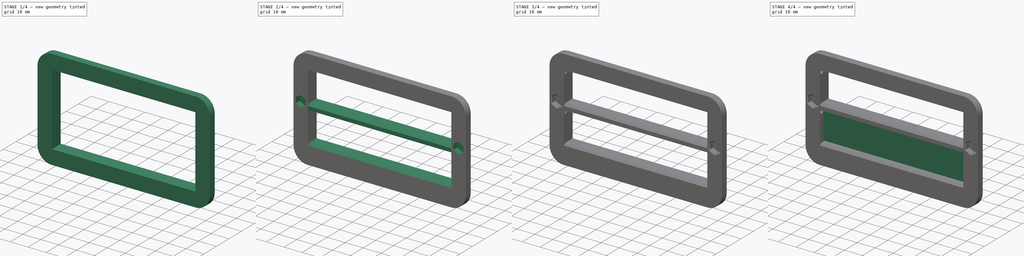
[diagram: build sequence overview — one tinted view per stage of 4, left to right]
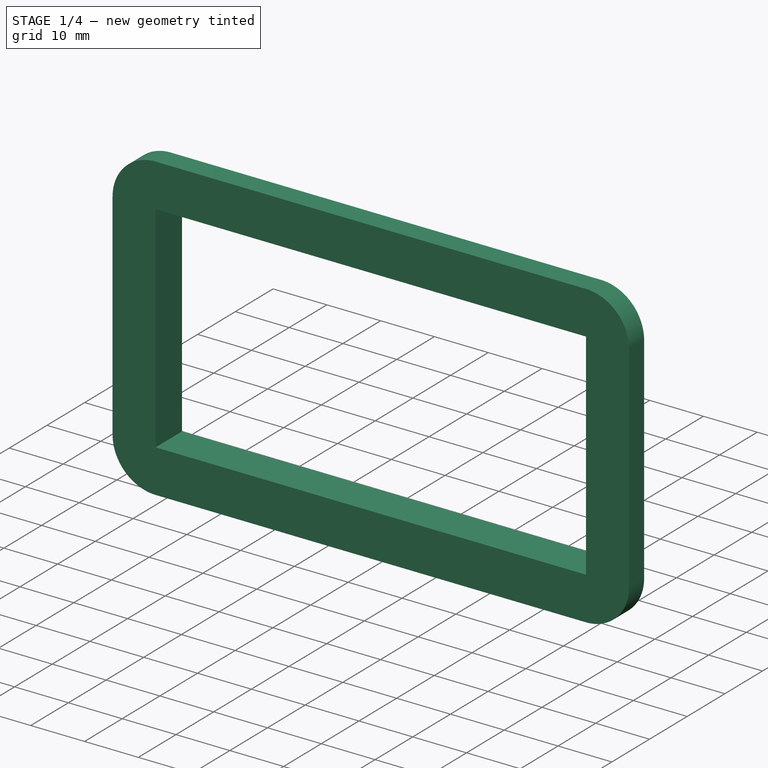
[diagram: stage 1 of 4 — iso view after this stage's code; geometry added in this stage tinted green]
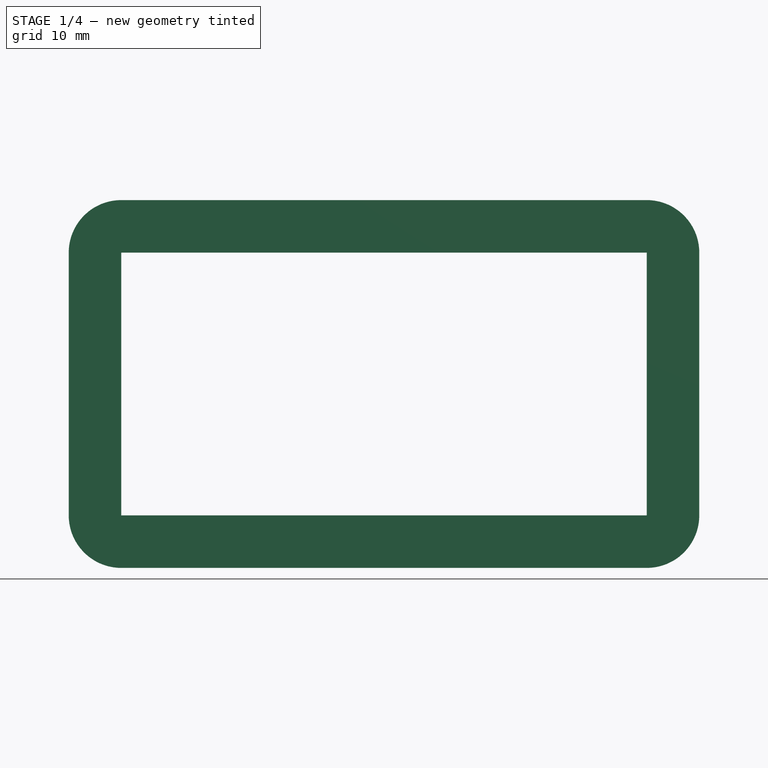
[diagram: stage 1 of 4 — front view after this stage's code; geometry added in this stage tinted green]
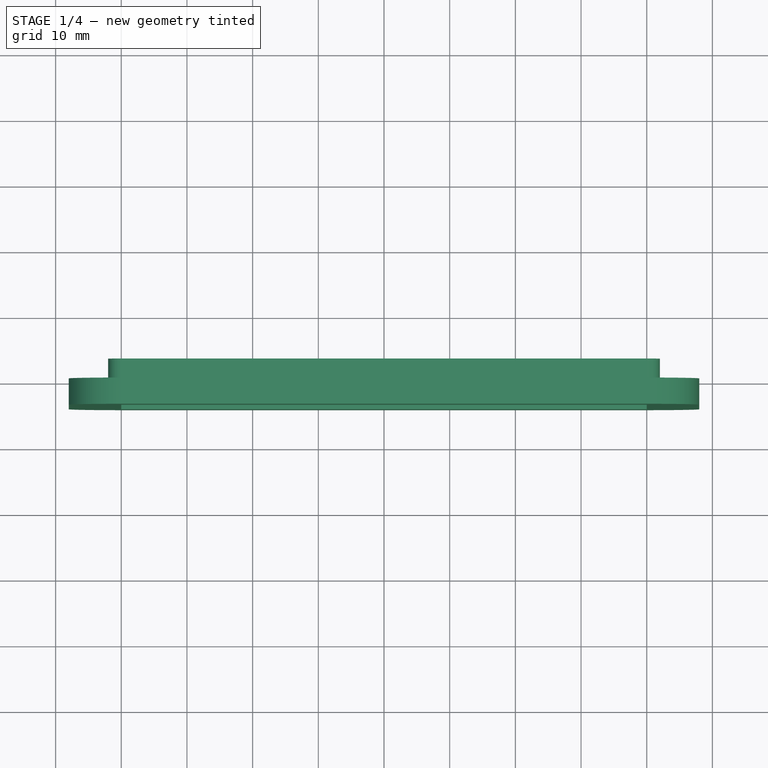
[diagram: stage 1 of 4 — top view after this stage's code; geometry added in this stage tinted green]
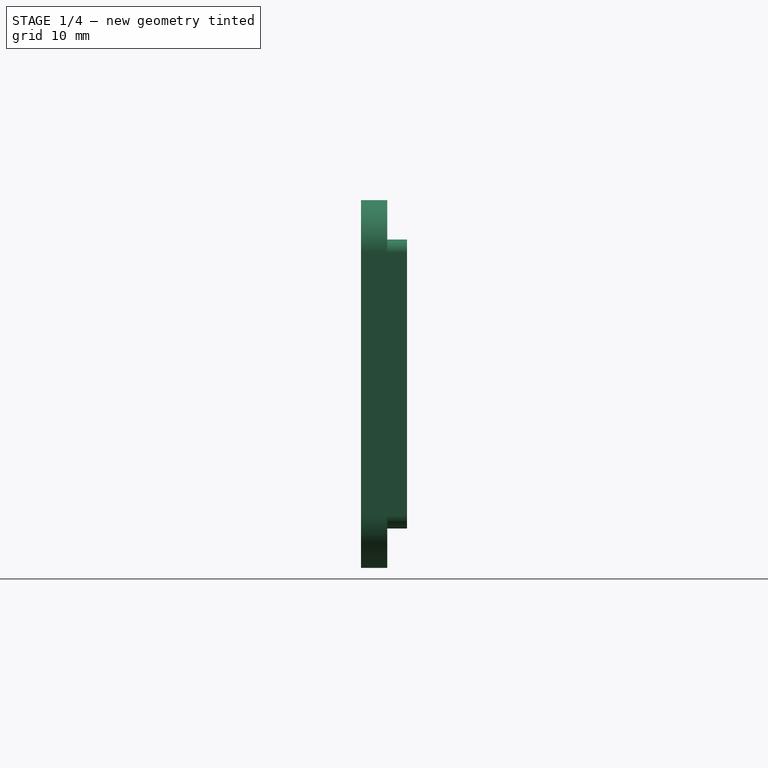
[diagram: stage 1 of 4 — right view after this stage's code; geometry added in this stage tinted green]
FCSTD DOCUMENT  (FreeCAD 1.0R39109 (Git))
Label: intake-vents
License: All rights reserved
LicenseURL: http://en.wikipedia.org/wiki/All_rights_reserved
objects: Sketcher::SketchObject×10, PartDesign::Pad×5, PartDesign::Pocket×5, App::LinkElement×2, PartDesign::Fillet×2, PartDesign::Body×2, App::Link×1, Spreadsheet::Sheet×1, PartDesign::Chamfer×1, App::DocumentObjectGroup×1, App::Part×1
note: 61 computed .brp shape members not serialized (recipe doc carries the construction recipe); baked Part::Feature solids carry a one-line shape summary decoded from their .brp

FEATURE [Sketcher::SketchObject] Sketch
  ArcFitTolerance = 1e-06
  AttachmentSupport = -> [XZ_Plane001]
  FullyConstrained = true
  MakeInternals = false
  MapMode = 5
  Placement = pos=(0,0,0) rot=(1,0,0;1.5708rad)
  sketch-geometry (12):
    g0: LineSegment StartX=-48 StartY=20 StartZ=0 EndX=-48 EndY=-20 EndZ=0
    g1: LineSegment StartX=-40 StartY=-28 StartZ=0 EndX=40 EndY=-28 EndZ=0
    g2: LineSegment StartX=48 StartY=-20 StartZ=0 EndX=48 EndY=20 EndZ=0
    g3: LineSegment StartX=40 StartY=28 StartZ=0 EndX=-40 EndY=28 EndZ=0
    g4: ArcOfCircle CenterX=-40 CenterY=20 CenterZ=0 NormalX=0 NormalY=0 NormalZ=1 AngleXU=0 Radius=8 StartAngle=1.5708 EndAngle=3.14159
    g5: GeomPoint [constr] X=-48 Y=28 Z=0
    g6: ArcOfCircle CenterX=40 CenterY=20 CenterZ=0 NormalX=0 NormalY=0 NormalZ=1 AngleXU=0 Radius=8 StartAngle=0 EndAngle=1.5708
    g7: GeomPoint [constr] X=48 Y=28 Z=0
    g8: ArcOfCircle CenterX=40 CenterY=-20 CenterZ=0 NormalX=0 NormalY=0 NormalZ=1 AngleXU=0 Radius=8 StartAngle=4.71239 EndAngle=6.28319
    g9: GeomPoint [constr] X=48 Y=-28 Z=0
    g10: ArcOfCircle CenterX=-40 CenterY=-20 CenterZ=0 NormalX=0 NormalY=0 NormalZ=1 AngleXU=0 Radius=8 StartAngle=3.14159 EndAngle=4.71239
    g11: GeomPoint [constr] X=-48 Y=-28 Z=0
  constraints (27):
    c: Vertical(g0)
    c: Vertical(g2)
    c: Horizontal(g1)
    c: Horizontal(g3)
    c: Symmetric(g7,g11,g-1)
    c: PointOnObject(g5,g0)
    c: PointOnObject(g5,g3)
    c: Tangent(g0,g4) = -1.5708
    c: Tangent(g3,g4) = -1.5708
    c: PointOnObject(g7,g2)
    c: PointOnObject(g7,g3)
    c: Tangent(g2,g6) = -1.5708
    c: Tangent(g3,g6) = -1.5708
    c: PointOnObject(g9,g1)
    c: PointOnObject(g9,g2)
    c: Tangent(g1,g8) = -1.5708
    c: Tangent(g2,g8) = -1.5708
    c: PointOnObject(g11,g0)
    c: PointOnObject(g11,g1)
    c: Tangent(g0,g10) = -1.5708
    c: Tangent(g1,g10) = -1.5708
    c: Equal(g10,g4)
    c: Equal(g10,g6)
    c: Equal(g10,g8)
    c: Radius(g10) = 8
    c: DistanceX(g4,g6) = 80
    c: DistanceY(g8,g6) = 40
FEATURE [PartDesign::Pad] Pad
  Direction = (0,-1,2e-16)
  Length = 4
  Length2 = 10
  Placement = pos=(0,0,0) rot=(1,0,0;1.5708rad)
  Profile = -> Sketch
  ReferenceAxis = -> Sketch [N_Axis]
  Suppressed = false
  Type = 0
FEATURE [Sketcher::SketchObject] Sketch001
  ArcFitTolerance = 1e-06
  AttachmentSupport = -> [XZ_Plane001]
  FullyConstrained = true
  MakeInternals = false
  MapMode = 5
  Placement = pos=(0,0,0) rot=(1,0,0;1.5708rad)
  sketch-geometry (12):
    g0: LineSegment StartX=-42 StartY=20 StartZ=0 EndX=-42 EndY=-20 EndZ=0
    g1: LineSegment StartX=-40 StartY=-22 StartZ=0 EndX=40 EndY=-22 EndZ=0
    g2: LineSegment StartX=42 StartY=-20 StartZ=0 EndX=42 EndY=20 EndZ=0
    g3: LineSegment StartX=40 StartY=22 StartZ=0 EndX=-40 EndY=22 EndZ=0
    g4: ArcOfCircle CenterX=40 CenterY=20 CenterZ=0 NormalX=0 NormalY=0 NormalZ=1 AngleXU=0 Radius=2 StartAngle=0 EndAngle=1.5708
    g5: GeomPoint [constr] X=42 Y=22 Z=0
    g6: ArcOfCircle CenterX=40 CenterY=-20 CenterZ=0 NormalX=0 NormalY=0 NormalZ=1 AngleXU=0 Radius=2 StartAngle=4.71239 EndAngle=6.28319
    g7: GeomPoint [constr] X=42 Y=-22 Z=0
    g8: ArcOfCircle CenterX=-40 CenterY=-20 CenterZ=0 NormalX=0 NormalY=0 NormalZ=1 AngleXU=0 Radius=2 StartAngle=3.14159 EndAngle=4.71239
    g9: GeomPoint [constr] X=-42 Y=-22 Z=0
    g10: ArcOfCircle CenterX=-40 CenterY=20 CenterZ=0 NormalX=0 NormalY=0 NormalZ=1 AngleXU=0 Radius=2 StartAngle=1.5708 EndAngle=3.14159
    g11: GeomPoint [constr] X=-42 Y=22 Z=0
  constraints (27):
    c: Vertical(g0)
    c: Vertical(g2)
    c: Horizontal(g1)
    c: Horizontal(g3)
    c: PointOnObject(g5,g2)
    c: PointOnObject(g5,g3)
    c: Tangent(g2,g4) = -1.5708
    c: Tangent(g3,g4) = -1.5708
    c: PointOnObject(g7,g1)
    c: PointOnObject(g7,g2)
    c: Tangent(g1,g6) = -1.5708
    c: Tangent(g2,g6) = -1.5708
    c: PointOnObject(g9,g0)
    c: PointOnObject(g9,g1)
    c: Tangent(g0,g8) = -1.5708
    c: Tangent(g1,g8) = -1.5708
    c: PointOnObject(g11,g0)
    c: PointOnObject(g11,g3)
    c: Tangent(g0,g10) = -1.5708
    c: Tangent(g3,g10) = -1.5708
    c: Equal(g10,g4)
    c: Equal(g4,g6)
    c: Equal(g6,g8)
    c: Radius(g8) = 2
    c: DistanceX(g10,g4) = 80
    c: Symmetric(g5,g9,g-1)
    c: DistanceY(g6,g4) = 40
FEATURE [PartDesign::Pad] Pad001
  BaseFeature = -> Pad
  Direction = (0,-1,2e-16)
  Length = 3
  Length2 = 10
  Placement = pos=(0,0,0) rot=(1,0,0;1.5708rad)
  Profile = -> Sketch001
  ReferenceAxis = -> Sketch001 [N_Axis]
  Reversed = true
  Suppressed = false
  Type = 0
FEATURE [Sketcher::SketchObject] Sketch002
  ArcFitTolerance = 1e-06
  AttachmentSupport = -> [XZ_Plane001]
  FullyConstrained = true
  MakeInternals = false
  MapMode = 5
  Placement = pos=(0,0,0) rot=(1,0,0;1.5708rad)
  sketch-geometry (4):
    g0: LineSegment StartX=-40 StartY=20 StartZ=0 EndX=-40 EndY=-20 EndZ=0
    g1: LineSegment StartX=-40 StartY=-20 StartZ=0 EndX=40 EndY=-20 EndZ=0
    g2: LineSegment StartX=40 StartY=-20 StartZ=0 EndX=40 EndY=20 EndZ=0
    g3: LineSegment StartX=40 StartY=20 StartZ=0 EndX=-40 EndY=20 EndZ=0
  constraints (11):
    c: Coincident(g0,g1)
    c: Coincident(g1,g2)
    c: Coincident(g2,g3)
    c: Coincident(g3,g0)
    c: Vertical(g0)
    c: Vertical(g2)
    c: Horizontal(g1)
    c: Horizontal(g3)
    c: Symmetric(g2,g0,g-1)
    c: DistanceY(g2,g2) = 40
    c: DistanceX(g3,g3) = 80
FEATURE [PartDesign::Pocket] Pocket
  BaseFeature = -> Pad001
  Direction = (0,1,-2e-16)
  Length = 5
  Length2 = 5
  Midplane = true
  Placement = pos=(0,0,0) rot=(1,0,0;1.5708rad)
  Profile = -> Sketch002
  ReferenceAxis = -> Sketch002 [N_Axis]
  Suppressed = false
  Type = 1
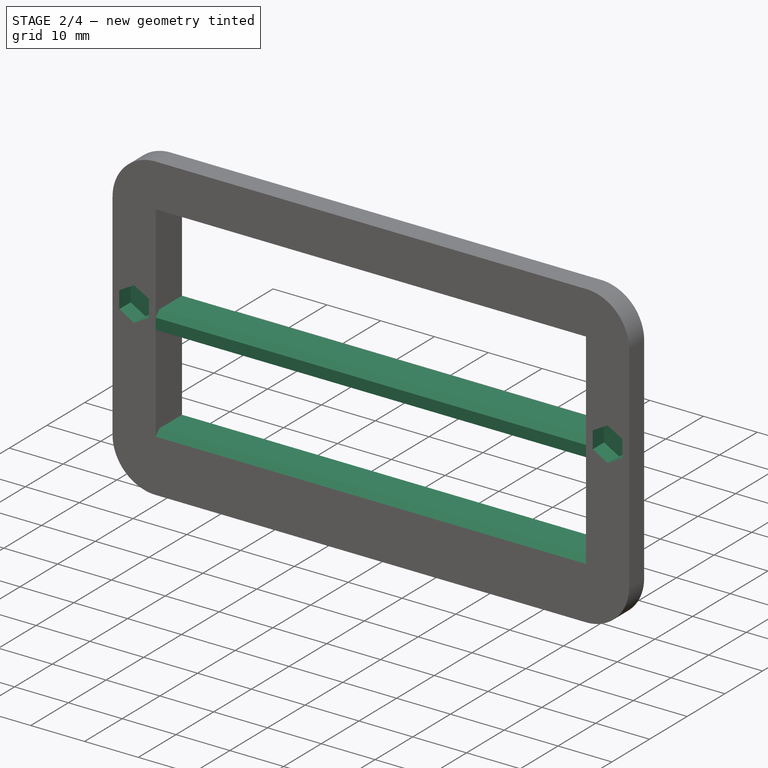
[diagram: stage 2 of 4 — iso view after this stage's code; geometry added in this stage tinted green]
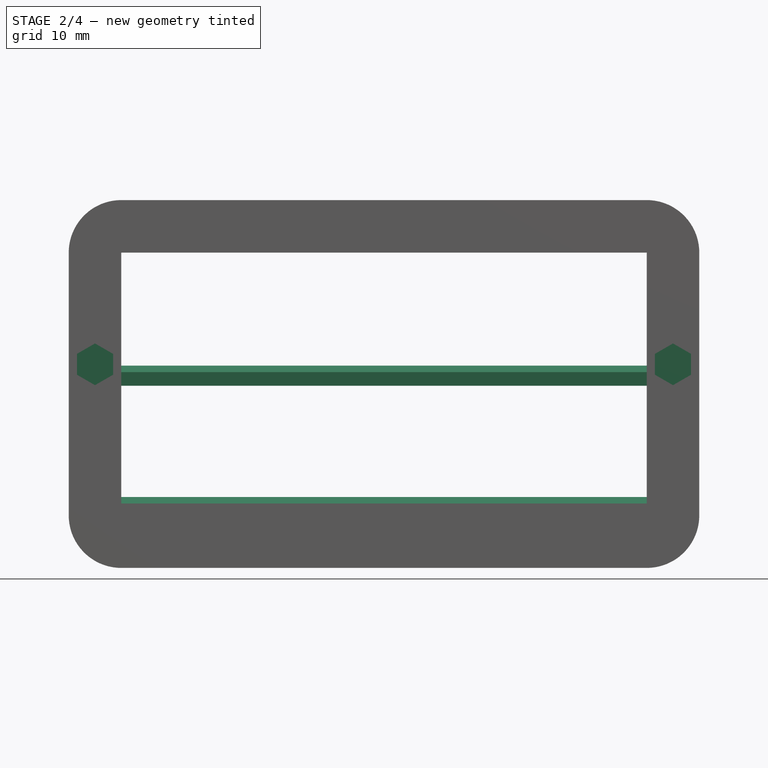
[diagram: stage 2 of 4 — front view after this stage's code; geometry added in this stage tinted green]
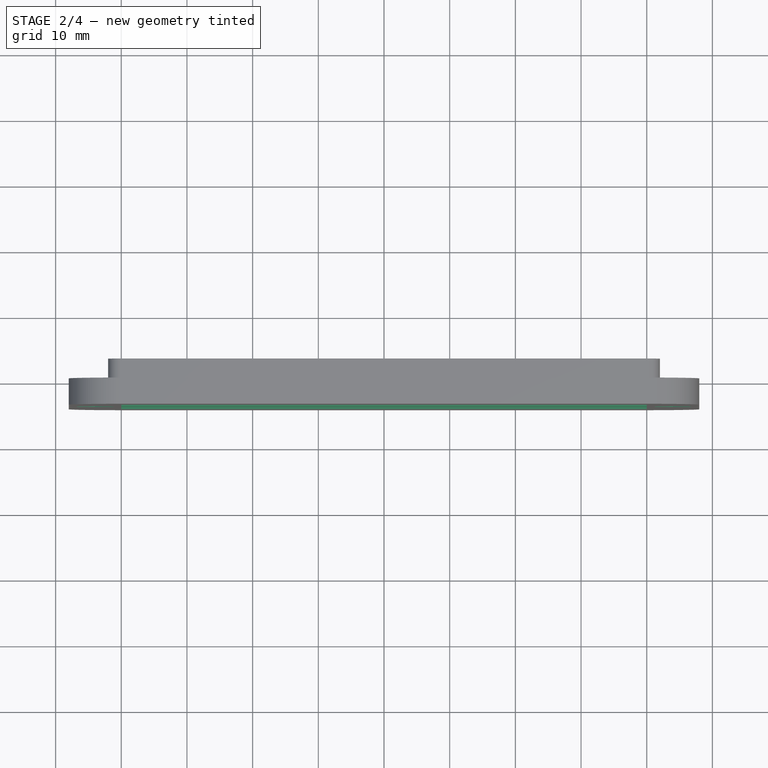
[diagram: stage 2 of 4 — top view after this stage's code; geometry added in this stage tinted green]
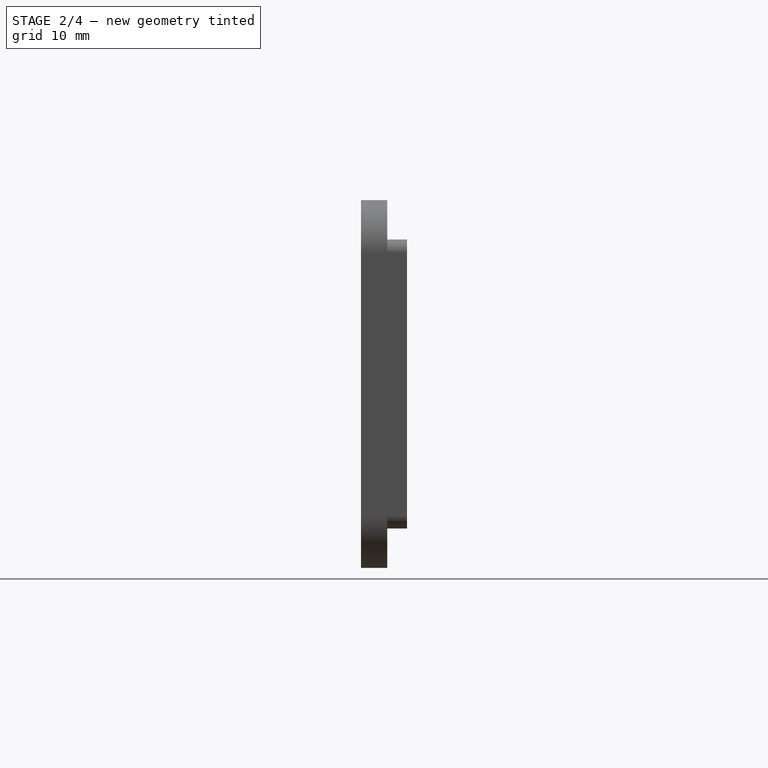
[diagram: stage 2 of 4 — right view after this stage's code; geometry added in this stage tinted green]
FEATURE [App::LinkElement] Link_i0
  LinkPlacement = pos=(0,0,-1.5) rot=(-1,0,0;0.785398rad)
  LinkedObject = -> Body001
  Placement = pos=(0,0,-1.5) rot=(-1,0,0;0.785398rad)
  _LinkOwner = 2589
  expr: .Placement.Rotation.Roll = -Spreadsheet.opening_angle
FEATURE [App::LinkElement] Link_i1
  LinkPlacement = pos=(0,0,18.5) rot=(-1,0,0;0.785398rad)
  LinkedObject = -> Body001
  Placement = pos=(0,0,18.5) rot=(-1,0,0;0.785398rad)
  _LinkOwner = 2589
  expr: .Placement.Rotation.Roll = -Spreadsheet.opening_angle
FEATURE [App::Link] Link  label="lamella"
  ElementCount = 2
  ElementList = -> [Link_i0,Link_i1]
  LinkPlacement = pos=(0,-2.5,0) rot=(0,0,1;0rad)
  LinkedObject = -> Body001
  Placement = pos=(0,-2.5,0) rot=(0,0,1;0rad)
FEATURE [Sketcher::SketchObject] Sketch004
  ArcFitTolerance = 1e-06
  AttachmentSupport = -> [YZ_Plane001]
  FullyConstrained = true
  MakeInternals = false
  MapMode = 5
  Placement = pos=(0,0,0) rot=(0.57735,0.57735,0.57735;2.0944rad)
  sketch-geometry (15):
    g0: LineSegment StartX=-3 StartY=2.8 StartZ=0 EndX=3 EndY=2.8 EndZ=0
    g1: LineSegment StartX=3 StartY=2.8 StartZ=0 EndX=3 EndY=0 EndZ=0
    g2: ArcOfCircle CenterX=-2.5 CenterY=-1.5 CenterZ=0 NormalX=0 NormalY=0 NormalZ=1 AngleXU=0 Radius=1.75 StartAngle=1.0297 EndAngle=2.35619
    g3: LineSegment StartX=-4 StartY=1.8 StartZ=0 EndX=-4 EndY=-0.262563 EndZ=0
    g4: LineSegment StartX=-4 StartY=-0.262563 StartZ=0 EndX=-3.73744 EndY=-0.262563 EndZ=0
    g5: LineSegment [constr] StartX=-3.73744 StartY=-0.262563 StartZ=0 EndX=-4 EndY=-0.525126 EndZ=0
    g6: GeomPoint [constr] X=-2.5 Y=0 Z=0
    g7: GeomPoint [constr] X=-2.5 Y=0.25 Z=0
    g8: LineSegment StartX=-1.59861 StartY=0 StartZ=0 EndX=3 EndY=0 EndZ=0
    g9: LineSegment StartX=-3 StartY=-17.2 StartZ=0 EndX=3 EndY=-17.2 EndZ=0
    g10: LineSegment StartX=3 StartY=-17.2 StartZ=0 EndX=3 EndY=-20 EndZ=0
    g11: LineSegment StartX=3 StartY=-20 StartZ=0 EndX=-4 EndY=-20 EndZ=0
    g12: LineSegment StartX=-4 StartY=1.8 StartZ=0 EndX=-3 EndY=2.8 EndZ=0
    g13: LineSegment StartX=-3 StartY=-17.2 StartZ=0 EndX=-4 EndY=-18.2 EndZ=0
    g14: LineSegment StartX=-4 StartY=-18.2 StartZ=0 EndX=-4 EndY=-20 EndZ=0
  constraints (43):
    c: Horizontal(g0)
    c: Coincident(g0,g1)
    c: PointOnObject(g1,g-1)
    c: Vertical(g1)
    c: DistanceX(g1) = 3
    c: DistanceX(g3) = -4
    c: PointOnObject(g2,g-1)
    c: Vertical(g3)
    c: Coincident(g3,g4)
    c: Horizontal(g4)
    c: Coincident(g2,g4)
    c: Tangent(g5,g2) = -1.5708
    c: Vertical(g5,g3)
    c: DistanceX(g2) = -2.5
    c: DistanceY(g2) = -1.5
    c: PointOnObject(g6,g-1)
    c: PointOnObject(g7,g2)
    c: Vertical(g7,g6)
    c: Vertical(g6,g2)
    c: DistanceY(g6,g7) = 0.25
    c: Coincident(g8,g2)
    c: Coincident(g8,g1)
    c: Horizontal(g9)
    c: Coincident(g9,g10)
    c: Vertical(g10)
    c: Coincident(g10,g11)
    c: Horizontal(g11)
    c: DistanceY(g11) = -20
    c: DistanceX(g11) = -4
    c: DistanceY(g11,g9) = 2.8
    c: DistanceX(g10) = 3
    c: Coincident(g12,g0)
    c: Angle(g12) = 0.785398
    c: Parallel(g5,g12)
    c: Coincident(g9,g13)
    c: Coincident(g14,g11)
    c: Vertical(g14)
    c: DistanceX(g13,g13) = 1
    c: Angle(g13) = -2.35619
    c: Coincident(g12,g3)
    c: DistanceY(g3) = 1.8
    c: DistanceX(g12,g12) = 1
    c: Coincident(g13,g14)
FEATURE [PartDesign::Pad] Pad003
  BaseFeature = -> Pocket
  Direction = (1,0,0)
  Length = 80
  Length2 = 10
  Midplane = true
  Placement = pos=(0,0,0) rot=(1,0,0;1.5708rad)
  Profile = -> Sketch004
  ReferenceAxis = -> Sketch004 [N_Axis]
  Refine = true
  Suppressed = false
  Type = 0
FEATURE [Sketcher::SketchObject] Sketch005
  ArcFitTolerance = 1e-06
  AttachmentSupport = -> [YZ_Plane001]
  FullyConstrained = true
  MakeInternals = false
  MapMode = 5
  Placement = pos=(0,0,0) rot=(0.57735,0.57735,0.57735;2.0944rad)
  sketch-geometry (1):
    g0: Circle CenterX=-2.5 CenterY=18.5 CenterZ=0 NormalX=0 NormalY=0 NormalZ=1 AngleXU=0 Radius=1.75
  constraints (3):
    c: DistanceY(g0) = 18.5
    c: DistanceX(g0) = -2.5
    c: Diameter(g0) = 3.5
FEATURE [PartDesign::Pocket] Pocket001
  BaseFeature = -> Pad003
  Direction = (-1,0,0)
  Length = 80
  Length2 = 5
  Midplane = true
  Placement = pos=(0,0,0) rot=(1,0,0;1.5708rad)
  Profile = -> Sketch005
  ReferenceAxis = -> Sketch005 [N_Axis]
  Refine = true
  Suppressed = false
  Type = 0
  expr: Length = 80
FEATURE [Spreadsheet::Sheet] Spreadsheet
  cells = A1='opening_angle; B1(opening_angle)=45
FEATURE [Sketcher::SketchObject] Sketch006
  ArcFitTolerance = 1e-06
  AttachmentOffset = pos=(0,3,1) rot=(0,0,1;0rad)
  AttachmentSupport = -> [XZ_Plane001]
  FullyConstrained = true
  MakeInternals = false
  MapMode = 5
  Placement = pos=(0,-1,3) rot=(1,0,0;1.5708rad)
  sketch-geometry (16):
    g0: LineSegment StartX=-44 StartY=-3.17543 StartZ=0 EndX=-41.25 EndY=-1.58771 EndZ=0
    g1: LineSegment StartX=-41.25 StartY=-1.58771 StartZ=0 EndX=-41.25 EndY=1.58771 EndZ=0
    g2: LineSegment StartX=-41.25 StartY=1.58771 StartZ=0 EndX=-44 EndY=3.17543 EndZ=0
    g3: LineSegment StartX=-44 StartY=3.17543 StartZ=0 EndX=-46.75 EndY=1.58771 EndZ=0
    g4: LineSegment StartX=-46.75 StartY=1.58771 StartZ=0 EndX=-46.75 EndY=-1.58771 EndZ=0
    g5: LineSegment StartX=-46.75 StartY=-1.58771 StartZ=0 EndX=-44 EndY=-3.17543 EndZ=0
    g6: Circle [constr] CenterX=-44 CenterY=0 CenterZ=0 NormalX=0 NormalY=0 NormalZ=1 AngleXU=0 Radius=3.17543
    g7: LineSegment StartX=46.75 StartY=-1.58771 StartZ=0 EndX=46.75 EndY=1.58771 EndZ=0
    g8: LineSegment StartX=46.75 StartY=1.58771 StartZ=0 EndX=44 EndY=3.17543 EndZ=0
    g9: LineSegment StartX=44 StartY=3.17543 StartZ=0 EndX=41.25 EndY=1.58771 EndZ=0
    g10: LineSegment StartX=41.25 StartY=1.58771 StartZ=0 EndX=41.25 EndY=-1.58771 EndZ=0
    g11: LineSegment StartX=41.25 StartY=-1.58771 StartZ=0 EndX=44 EndY=-3.17543 EndZ=0
    g12: LineSegment StartX=44 StartY=-3.17543 StartZ=0 EndX=46.75 EndY=-1.58771 EndZ=0
    g13: Circle [constr] CenterX=44 CenterY=0 CenterZ=0 NormalX=0 NormalY=0 NormalZ=1 AngleXU=0 Radius=3.17543
    g14: GeomPoint X=-48 Y=0 Z=0
    g15: GeomPoint X=-40 Y=0 Z=0
  constraints (36):
    c: Coincident(g0,g1)
    c: Coincident(g1,g2)
    c: Coincident(g2,g3)
    c: Coincident(g3,g4)
    c: Coincident(g4,g5)
    c: Coincident(g5,g0)
    c: Equal(g0, g1-g5) x5
    c: PointOnObject(g0,g6)
    c: PointOnObject(g1,g6)
    c: PointOnObject(g2,g6)
    c: PointOnObject(g3,g6)
    c: PointOnObject(g4,g6)
    c: PointOnObject(g5,g6)
    c: PointOnObject(g6,g-1)
    c: Coincident(g7,g8)
    c: Coincident(g8,g9)
    c: Coincident(g9,g10)
    c: Coincident(g10,g11)
    c: Coincident(g11,g12)
    c: Coincident(g12,g7)
    c: Equal(g7, g8-g12) x5
    c: PointOnObject(g7,g13)
    c: PointOnObject(g8,g13)
    c: PointOnObject(g9,g13)
    c: PointOnObject(g10,g13)
    c: PointOnObject(g11,g13)
    c: PointOnObject(g12,g13)
    c: Symmetric(g13,g6,g-2)
    c: Equal(g13,g6)
    c: PointOnObject(g14,g-1)
    c: DistanceX(g15) = -40
    c: DistanceX(g14) = -48
    c: Symmetric(g15,g14,g6)
    c: Vertical(g1)
    c: DistanceX(g3,g1) = 5.5
    c: Vertical(g10)
FEATURE [PartDesign::Pocket] Pocket002
  BaseFeature = -> Pocket001
  Direction = (0,1,-2e-16)
  Length = 5
  Length2 = 5
  Placement = pos=(0,0,0) rot=(1,0,0;1.5708rad)
  Profile = -> Sketch006
  ReferenceAxis = -> Sketch006 [N_Axis]
  Reversed = true
  Suppressed = false
  Type = 1
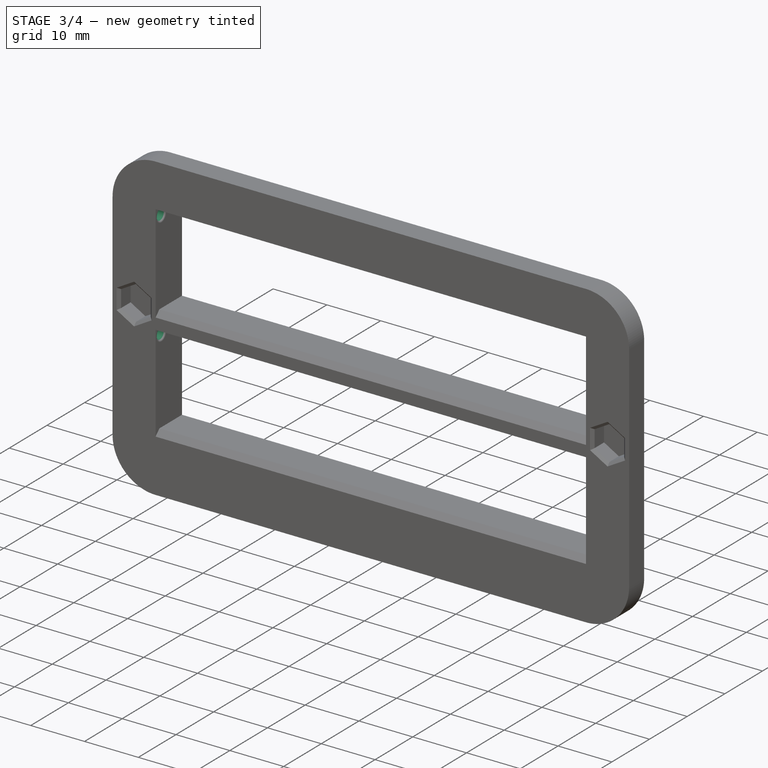
[diagram: stage 3 of 4 — iso view after this stage's code; geometry added in this stage tinted green]
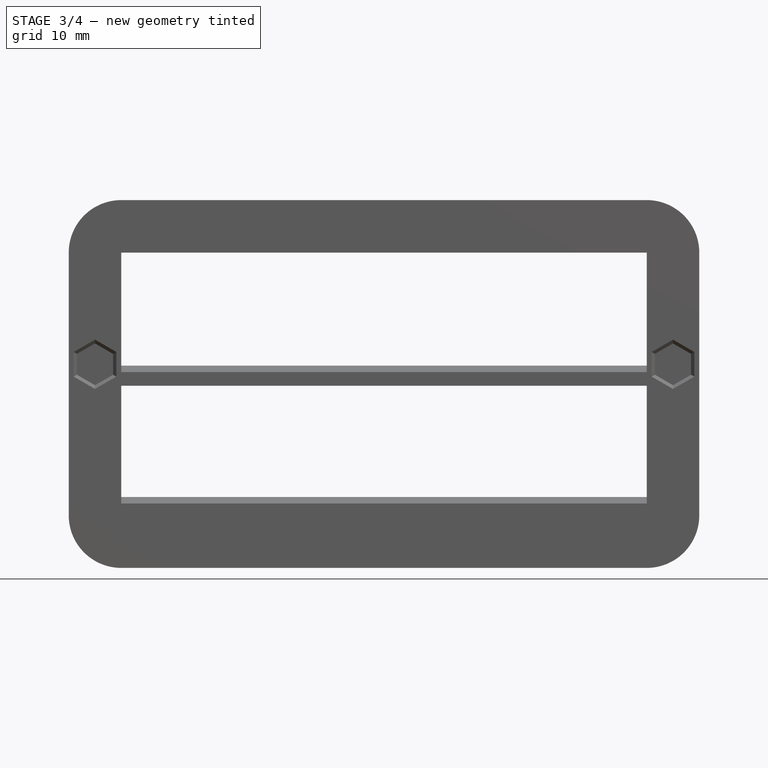
[diagram: stage 3 of 4 — front view after this stage's code; geometry added in this stage tinted green]
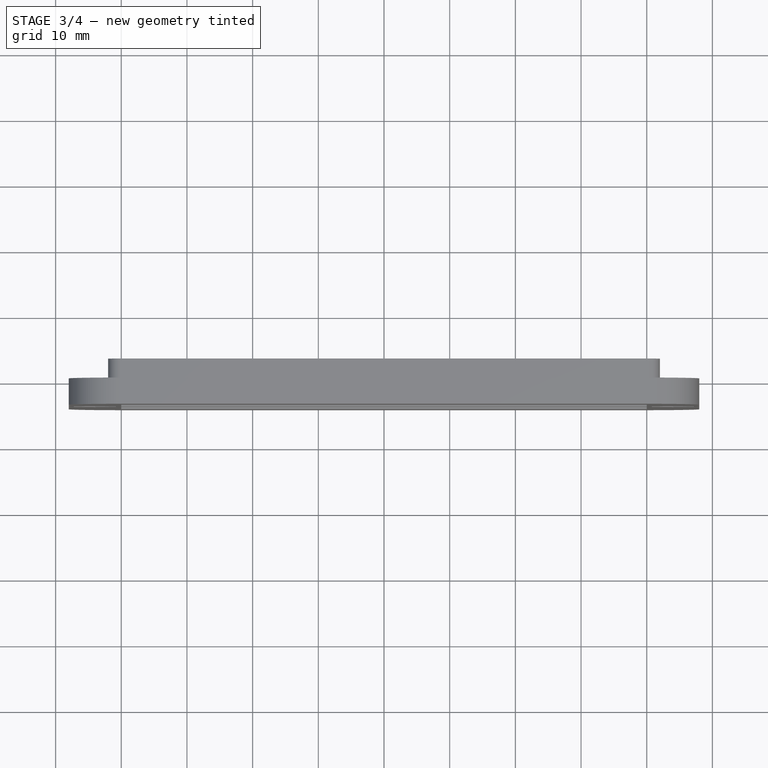
[diagram: stage 3 of 4 — top view after this stage's code; geometry added in this stage tinted green]
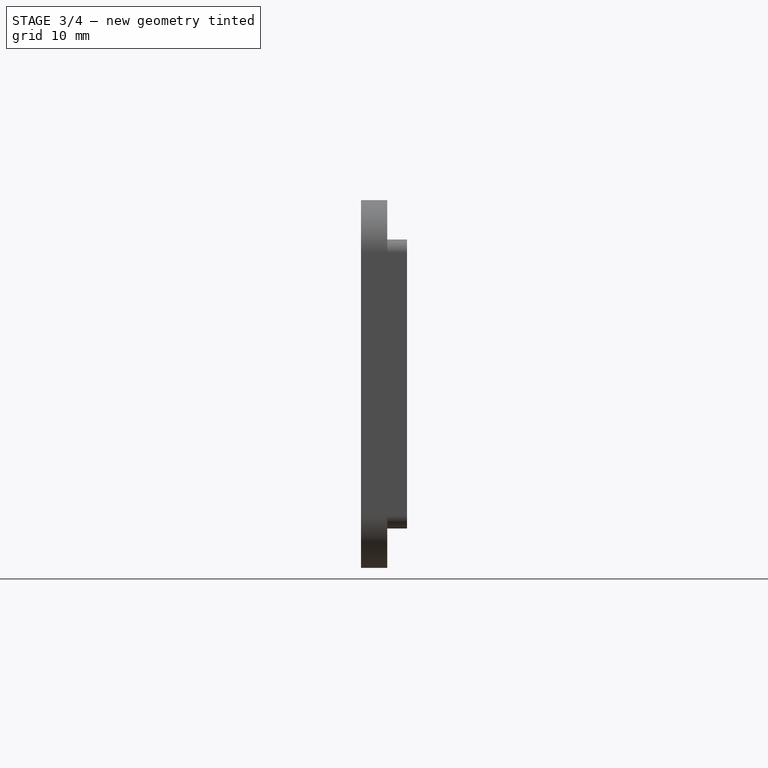
[diagram: stage 3 of 4 — right view after this stage's code; geometry added in this stage tinted green]
FEATURE [Sketcher::SketchObject] Sketch007
  ArcFitTolerance = 1e-06
  AttachmentOffset = pos=(0,3,0) rot=(0,0,1;0rad)
  AttachmentSupport = -> [XZ_Plane001]
  FullyConstrained = true
  MakeInternals = false
  MapMode = 5
  Placement = pos=(0,7e-16,3) rot=(1,0,0;1.5708rad)
  sketch-geometry (2):
    g0: Circle CenterX=-44 CenterY=0 CenterZ=0 NormalX=0 NormalY=0 NormalZ=1 AngleXU=0 Radius=1.75
    g1: Circle CenterX=44 CenterY=0 CenterZ=0 NormalX=0 NormalY=0 NormalZ=1 AngleXU=0 Radius=1.75
  constraints (5):
    c: PointOnObject(g1,g-1)
    c: Symmetric(g1,g0,g-2)
    c: Equal(g1,g0)
    c: DistanceX(g0) = -44
    c: Diameter(g0) = 3.5
FEATURE [PartDesign::Pocket] Pocket003
  BaseFeature = -> Pocket002
  Direction = (0,1,-2e-16)
  Length = 0.7
  Length2 = 5
  Placement = pos=(0,0,0) rot=(1,0,0;1.5708rad)
  Profile = -> Sketch007
  ReferenceAxis = -> Sketch007 [N_Axis]
  Reversed = true
  Suppressed = false
  Type = 0
FEATURE [PartDesign::Chamfer] Chamfer
  Angle = 45
  Base = -> Pocket003 [Edge45,Edge46,Edge47,Edge48,Edge50,Edge35,Edge36,Edge31,Edge32,Edge33,Edge34,Edge49]
  BaseFeature = -> Pocket003
  ChamferType = 0
  FlipDirection = false
  Placement = pos=(0,0,0) rot=(1,0,0;1.5708rad)
  Size = 0.5
  Size2 = 1
  SupportTransform = false
  Suppressed = false
  UseAllEdges = false
FEATURE [PartDesign::Body] Body001  label="lamella-drv"
  AllowCompound = false
  Group = -> [Sketch003,Pad002,Sketch008,Pad004,Fillet]
  Origin = -> Origin002
  Tip = -> Fillet
FEATURE [App::DocumentObjectGroup] Group  label="drv"
  Group = -> [Body001]
FEATURE [Sketcher::SketchObject] Sketch009
  ArcFitTolerance = 1e-06
  AttachmentSupport = -> [YZ_Plane001]
  FullyConstrained = true
  MakeInternals = false
  MapMode = 5
  Placement = pos=(0,0,0) rot=(0.57735,0.57735,0.57735;2.0944rad)
  sketch-geometry (2):
    g0: Circle CenterX=-2.5 CenterY=18.5 CenterZ=0 NormalX=0 NormalY=0 NormalZ=1 AngleXU=0 Radius=1
    g1: Circle CenterX=-2.5 CenterY=-1.5 CenterZ=0 NormalX=0 NormalY=0 NormalZ=1 AngleXU=0 Radius=1
  constraints (6):
    c: Equal(g1,g0)
    c: Vertical(g0,g1)
    c: DistanceX(g1) = -2.5
    c: DistanceY(g1) = -1.5
    c: DistanceY(g0) = 18.5
    c: Diameter(g0) = 2
FEATURE [PartDesign::Pocket] Pocket004
  BaseFeature = -> Chamfer
  Direction = (-1,0,0)
  Length = 84
  Length2 = 5
  Midplane = true
  Placement = pos=(0,0,0) rot=(1,0,0;1.5708rad)
  Profile = -> Sketch009
  ReferenceAxis = -> Sketch009 [N_Axis]
  Suppressed = false
  Type = 0
FEATURE [PartDesign::Fillet] Fillet001
  Base = -> Pocket004 [Edge79,Edge142,Edge137,Edge63,Edge143,Edge88,Edge138,Edge72]
  BaseFeature = -> Pocket004
  Placement = pos=(0,0,0) rot=(1,0,0;1.5708rad)
  Radius = 0.3
  SupportTransform = false
  Suppressed = false
  UseAllEdges = false
FEATURE [PartDesign::Body] Body  label="frame"
  AllowCompound = false
  Group = -> [Sketch,Pad,Sketch001,Pad001,Sketch002,Pocket,Sketch004,Pad003,Sketch005,Pocket001,Sketch006,Pocket002,Sketch007,Pocket003,Chamfer,Sketch009,Pocket004,Fillet001]
  Origin = -> Origin001
  Tip = -> Fillet001
FEATURE [App::Part] Part  label="main"
  Group = -> [Body,Link]
  Origin = -> Origin
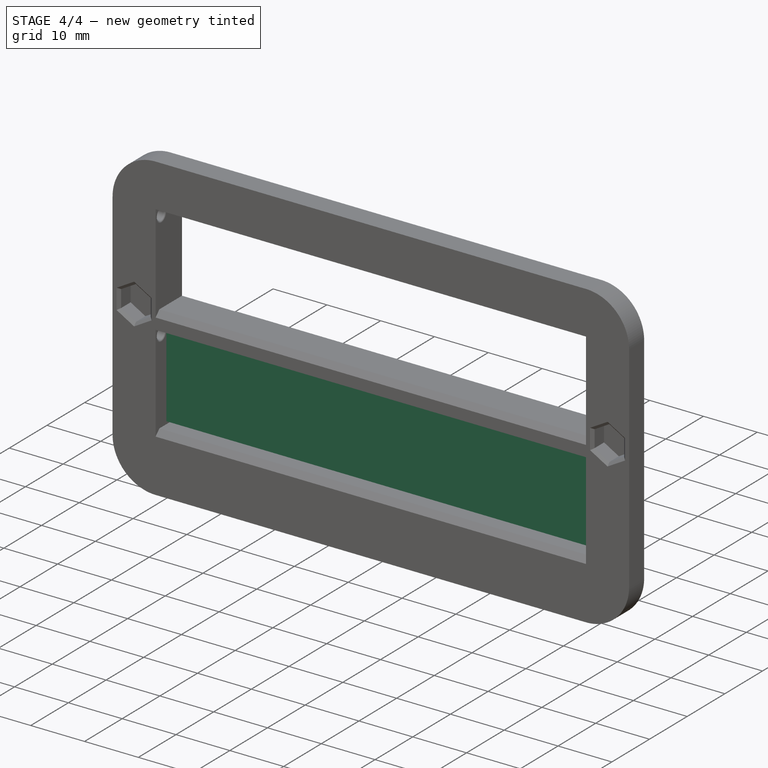
[diagram: stage 4 of 4 — iso view after this stage's code; geometry added in this stage tinted green]
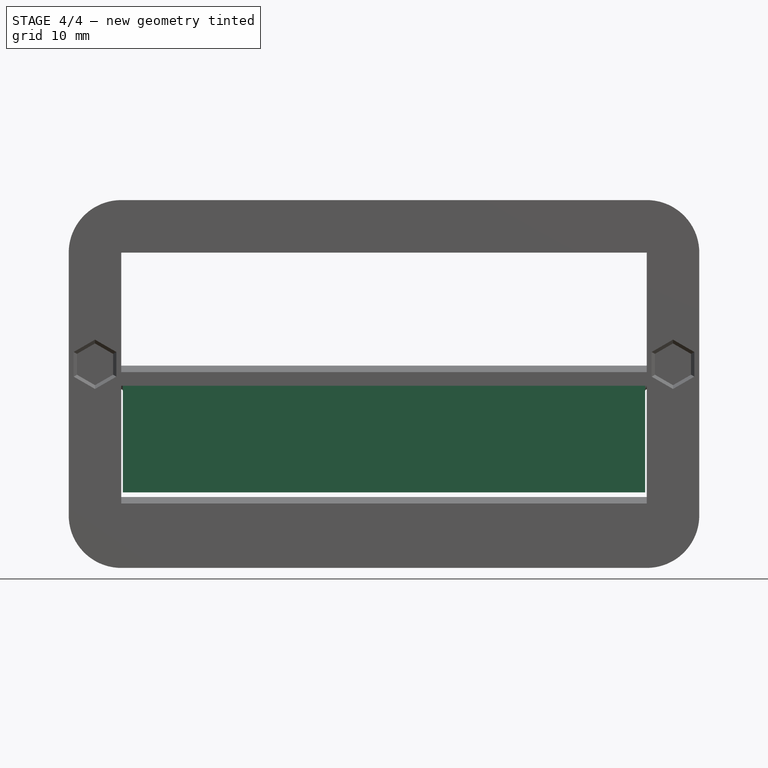
[diagram: stage 4 of 4 — front view after this stage's code; geometry added in this stage tinted green]
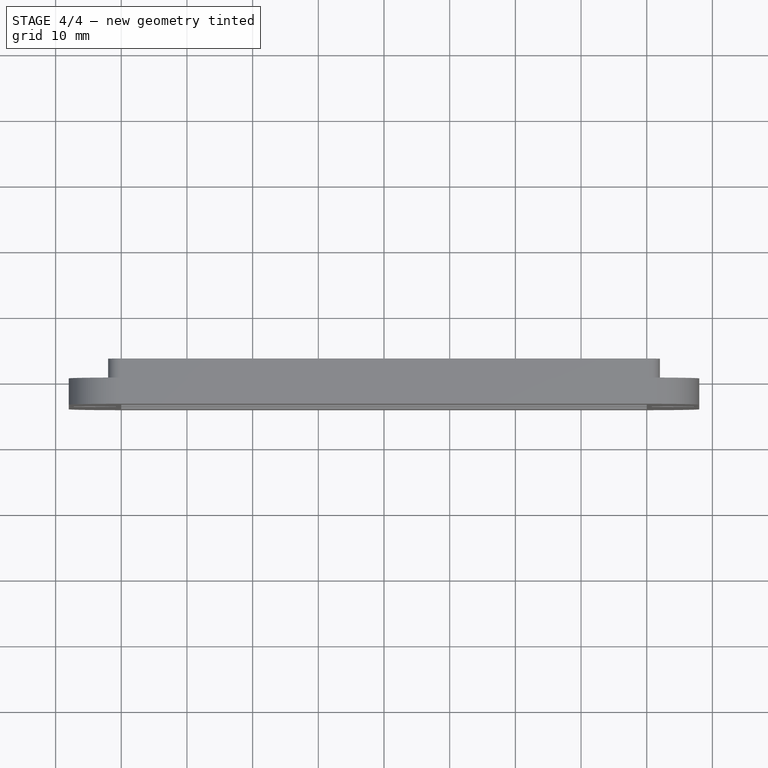
[diagram: stage 4 of 4 — top view after this stage's code; geometry added in this stage tinted green]
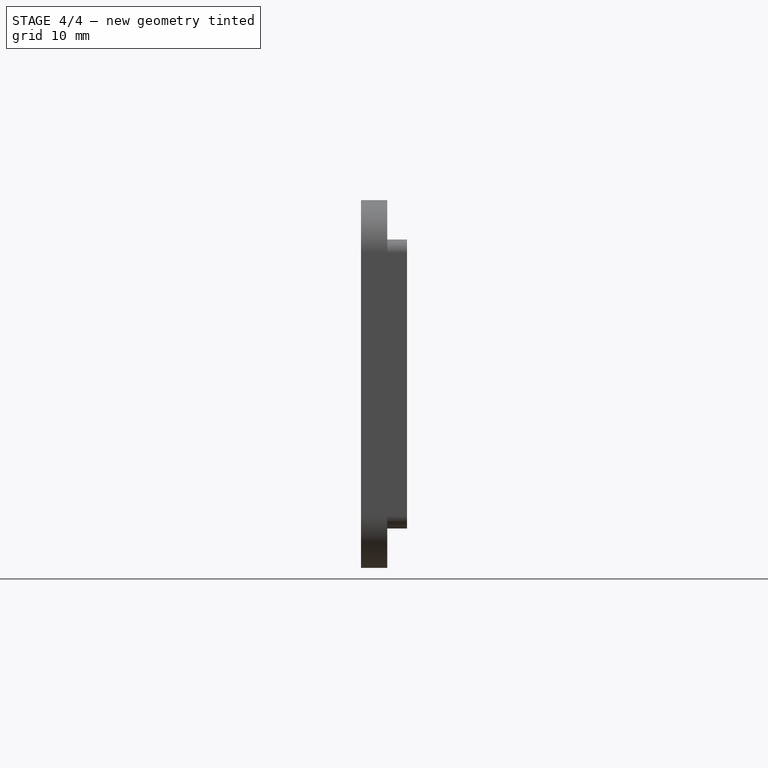
[diagram: stage 4 of 4 — right view after this stage's code; geometry added in this stage tinted green]
FEATURE [Sketcher::SketchObject] Sketch003
  ArcFitTolerance = 1e-06
  AttachmentSupport = -> [YZ_Plane002]
  FullyConstrained = true
  MakeInternals = false
  MapMode = 5
  Placement = pos=(0,0,0) rot=(0.57735,0.57735,0.57735;2.0944rad)
  sketch-geometry (6):
    g0: LineSegment StartX=-1.5 StartY=-16.5 StartZ=0 EndX=-0.5 EndY=-15.5 EndZ=0
    g1: ArcOfCircle CenterX=0 CenterY=0 CenterZ=0 NormalX=0 NormalY=0 NormalZ=1 AngleXU=0 Radius=1.5 StartAngle=5.40216 EndAngle=9.42478
    g2: GeomPoint X=0 Y=1.5 Z=0
    g3: LineSegment StartX=-1.5 StartY=0 StartZ=0 EndX=-1.5 EndY=-16.5 EndZ=0
    g4: ArcOfCircle CenterX=3.5 CenterY=-4.24264 CenterZ=0 NormalX=0 NormalY=0 NormalZ=1 AngleXU=0 Radius=4 StartAngle=2.26057 EndAngle=3.14159
    g5: LineSegment StartX=-0.5 StartY=-15.5 StartZ=0 EndX=-0.5 EndY=-4.24264 EndZ=0
  constraints (15):
    c: Coincident(g1,g-1)
    c: Angle(g0) = 0.785398
    c: Diameter(g1) = 3
    c: PointOnObject(g2,g1)
    c: Vertical(g2,g1)
    c: Coincident(g3,g0)
    c: Vertical(g3)
    c: Tangent(g3,g1) = -1.5708
    c: Coincident(g5,g0)
    c: Vertical(g5)
    c: Tangent(g5,g4) = 1.5708
    c: Tangent(g4,g1) = 1.5708
    c: DistanceX(g0,g0) = 1
    c: Radius(g4) = 4
    c: DistanceY(g0,g2) = 18
FEATURE [PartDesign::Pad] Pad002
  Direction = (1,0,0)
  Length = 79.5
  Length2 = 10
  Midplane = true
  Placement = pos=(0,0,0) rot=(1,1,1;2.0944rad)
  Profile = -> Sketch003
  ReferenceAxis = -> Sketch003 [N_Axis]
  Suppressed = false
  Type = 0
FEATURE [Sketcher::SketchObject] Sketch008
  ArcFitTolerance = 1e-06
  AttachmentSupport = -> [YZ_Plane002]
  FullyConstrained = true
  MakeInternals = false
  MapMode = 5
  Placement = pos=(0,0,0) rot=(0.57735,0.57735,0.57735;2.0944rad)
  sketch-geometry (1):
    g0: Circle CenterX=0 CenterY=0 CenterZ=0 NormalX=0 NormalY=0 NormalZ=1 AngleXU=0 Radius=0.8
  constraints (2):
    c: Coincident(g0,g-1)
    c: Diameter(g0) = 1.6
FEATURE [PartDesign::Pad] Pad004
  BaseFeature = -> Pad002
  Direction = (1,0,0)
  Length = 83.5
  Length2 = 10
  Midplane = true
  Placement = pos=(0,0,0) rot=(1,1,1;2.0944rad)
  Profile = -> Sketch008
  ReferenceAxis = -> Sketch008 [N_Axis]
  Suppressed = false
  Type = 0
FEATURE [PartDesign::Fillet] Fillet
  Base = -> Pad004 [Edge21,Edge16,Edge13,Edge18]
  BaseFeature = -> Pad004
  Placement = pos=(0,0,0) rot=(1,1,1;2.0944rad)
  Radius = 0.3
  SupportTransform = false
  Suppressed = false
  UseAllEdges = false
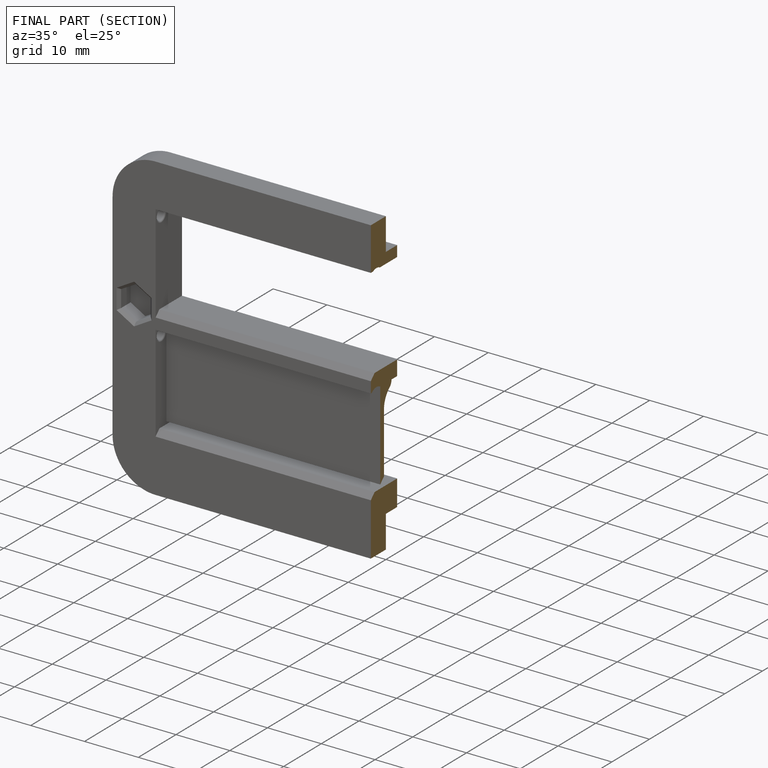
[diagram: finished part — half-section view (interior)]
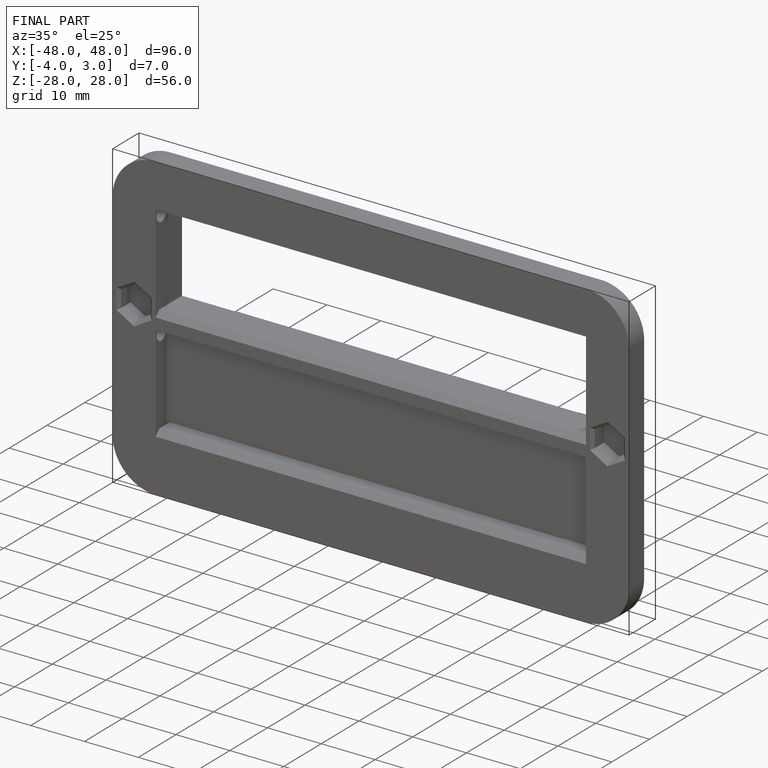
[diagram: finished part — iso view with bounding-box wireframe]
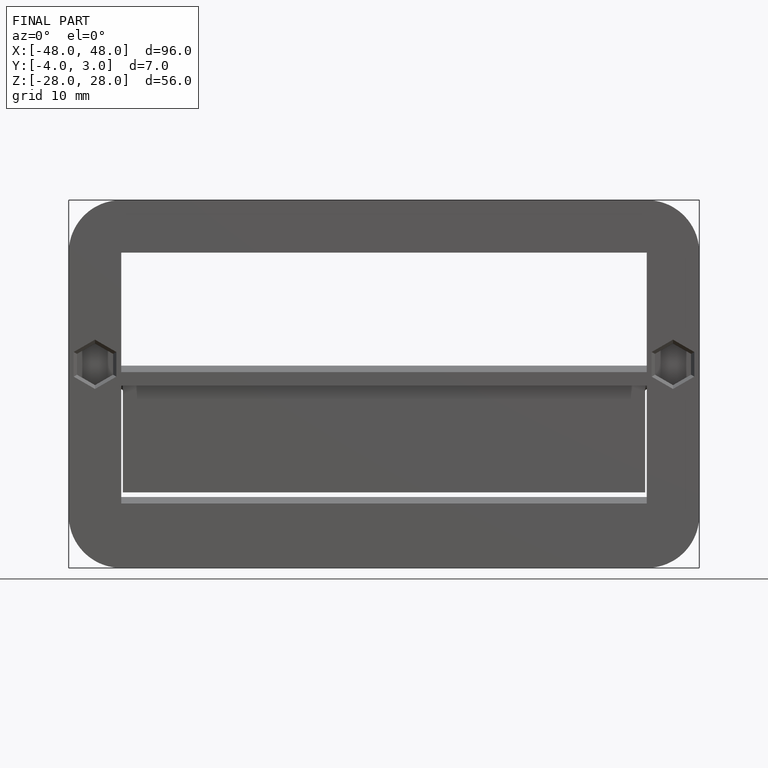
[diagram: finished part — front view with bounding-box wireframe]
